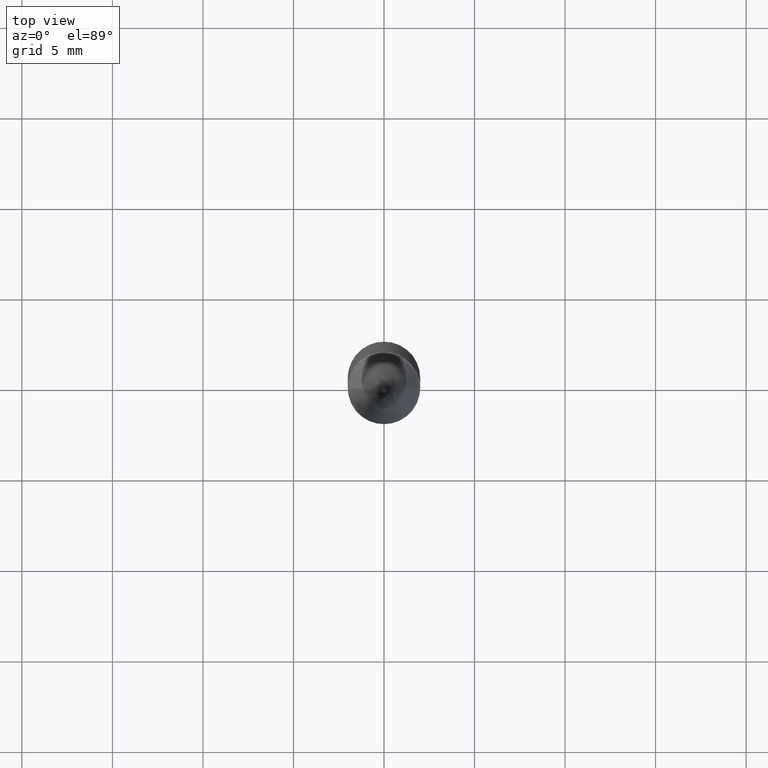
[diagram: clean part render]
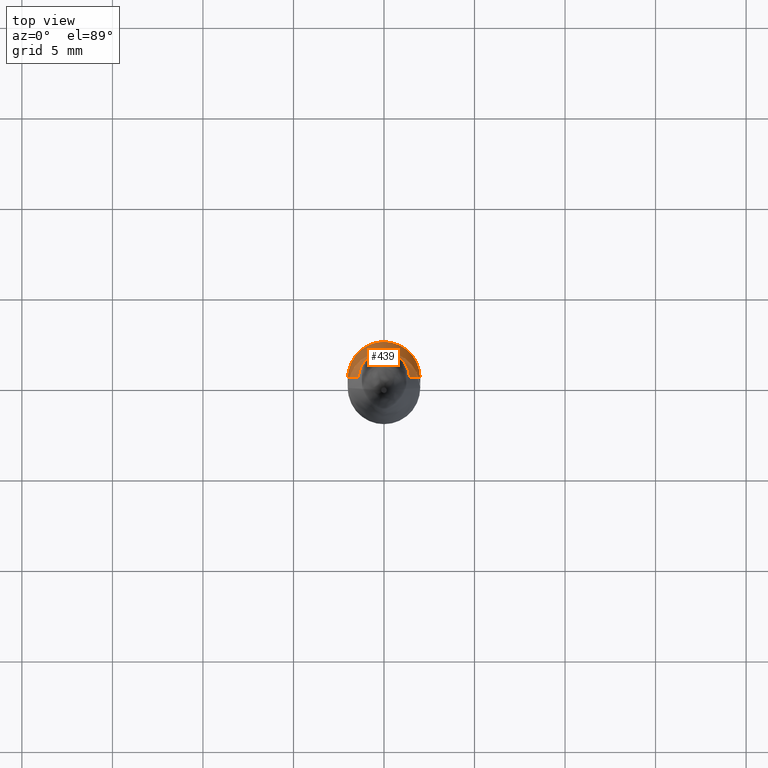
[diagram: same view with one face highlighted and labeled with its STEP entity id]
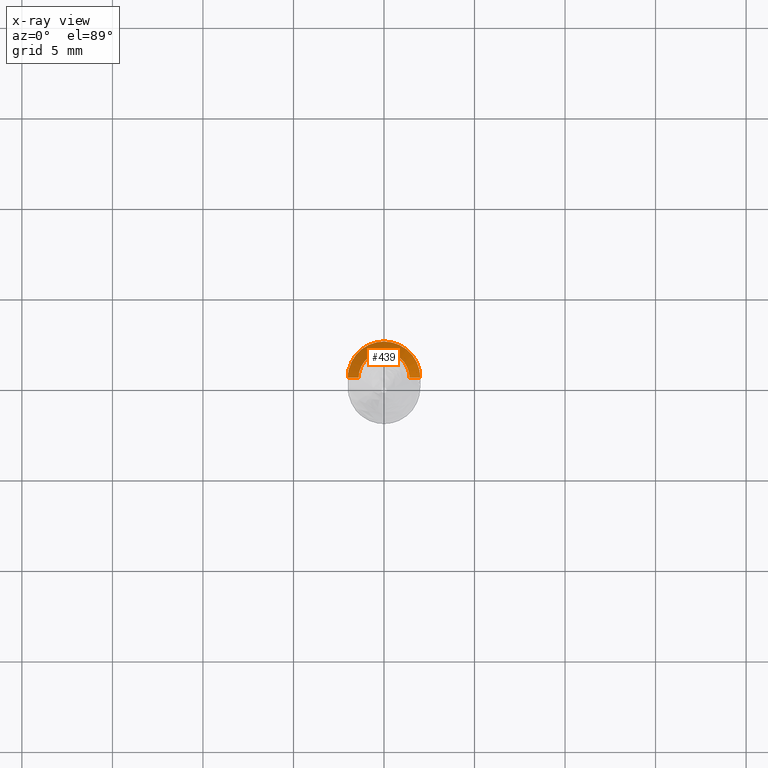
[diagram: x-ray of the same camera — body ghosted, the highlighted face saturated]
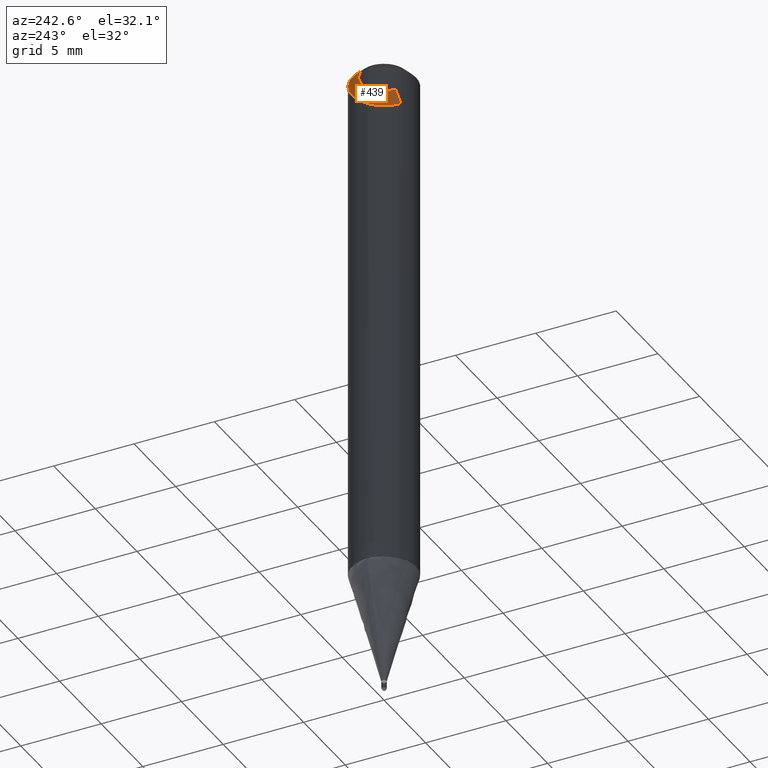
[diagram: same view with one face highlighted and labeled with its STEP entity id]
A machine part, top view. The second image highlights one B-rep face of the part: STEP entity #439.
The next image is the same camera in x-ray: the body ghosted, the highlighted face saturated — about 0% of this face is hidden behind the body in this view.
A second angle (auxiliary view) of the same face is appended — the face is thin or edge-on in the first view.
In plain terms, the highlighted face is a freeform B-spline surface patch.
Its self-contained STEP definition (entity closure, byte-faithful):
#208=CARTESIAN_POINT('',(2.0,0.0,31.895));
#209=CARTESIAN_POINT('',(2.0,2.0,31.895));
#210=CARTESIAN_POINT('',(0.0,2.0,31.895));
#211=CARTESIAN_POINT('',(-2.0,2.0,31.895));
#212=CARTESIAN_POINT('',(-2.0,0.0,31.895));
#213=CARTESIAN_POINT('',(1.4,0.0,32.495));
#214=CARTESIAN_POINT('',(1.4,1.4,32.495));
#215=CARTESIAN_POINT('',(0.0,1.4,32.495));
#216=CARTESIAN_POINT('',(-1.4,1.4,32.495));
#217=CARTESIAN_POINT('',(-1.4,0.0,32.495));
#420=(
BOUNDED_SURFACE()
B_SPLINE_SURFACE(1,2,(
(#208,#209,#210,#211,#212),
(#213,#214,#215,#216,#217)
), .UNSPECIFIED.,.F.,.F.,.F.)
B_SPLINE_SURFACE_WITH_KNOTS((2,2),(3,2,3),(
0.0,1.0),(
0.0,0.5,1.0), .UNSPECIFIED.)
GEOMETRIC_REPRESENTATION_ITEM()
RATIONAL_B_SPLINE_SURFACE(((1.0,0.707106781187,1.0,0.707106781187,1.0),
(1.0,0.707106781187,1.0,0.707106781187,1.0)
))
REPRESENTATION_ITEM('')
SURFACE()
);
#421=(
BOUNDED_CURVE()
B_SPLINE_CURVE(1,(#213,#208),.UNSPECIFIED.,.F.,.F.)
B_SPLINE_CURVE_WITH_KNOTS((2,2),
(0.0,1.0),.UNSPECIFIED.)
CURVE()
GEOMETRIC_REPRESENTATION_ITEM()
RATIONAL_B_SPLINE_CURVE((1.0,1.0))
REPRESENTATION_ITEM('')
);
#422=(
BOUNDED_CURVE()
B_SPLINE_CURVE(2,(#208,#209,#210,#211,#212),.UNSPECIFIED.,.F.,.F.)
B_SPLINE_CURVE_WITH_KNOTS((3,2,3),
(0.0,0.5,1.0),.UNSPECIFIED.)
CURVE()
GEOMETRIC_REPRESENTATION_ITEM()
RATIONAL_B_SPLINE_CURVE((1.0,0.707106781187,1.0,0.707106781187,1.0))
REPRESENTATION_ITEM('')
);
#423=(
BOUNDED_CURVE()
B_SPLINE_CURVE(1,(#212,#217),.UNSPECIFIED.,.F.,.F.)
B_SPLINE_CURVE_WITH_KNOTS((2,2),
(0.0,1.0),.UNSPECIFIED.)
CURVE()
GEOMETRIC_REPRESENTATION_ITEM()
RATIONAL_B_SPLINE_CURVE((1.0,1.0))
REPRESENTATION_ITEM('')
);
#424=(
BOUNDED_CURVE()
B_SPLINE_CURVE(2,(#217,#216,#215,#214,#213),.UNSPECIFIED.,.F.,.F.)
B_SPLINE_CURVE_WITH_KNOTS((3,2,3),
(0.0,0.5,1.0),.UNSPECIFIED.)
CURVE()
GEOMETRIC_REPRESENTATION_ITEM()
RATIONAL_B_SPLINE_CURVE((1.0,0.707106781187,1.0,0.707106781187,1.0))
REPRESENTATION_ITEM('')
);
#425=VERTEX_POINT('',#208);
#426=VERTEX_POINT('',#212);
#427=VERTEX_POINT('',#213);
#428=VERTEX_POINT('',#217);
#429=EDGE_CURVE('',#427,#425,#421,.T.);
#430=EDGE_CURVE('',#425,#426,#422,.T.);
#431=EDGE_CURVE('',#426,#428,#423,.T.);
#432=EDGE_CURVE('',#428,#427,#424,.T.);
#433=ORIENTED_EDGE('',*,*,#429,.T.);
#434=ORIENTED_EDGE('',*,*,#430,.T.);
#435=ORIENTED_EDGE('',*,*,#431,.T.);
#436=ORIENTED_EDGE('',*,*,#432,.T.);
#437=EDGE_LOOP('',(#433,#434,#435,#436));
#438=FACE_OUTER_BOUND('',#437,.T.);
#439=ADVANCED_FACE('',(#438),#420,.T.);